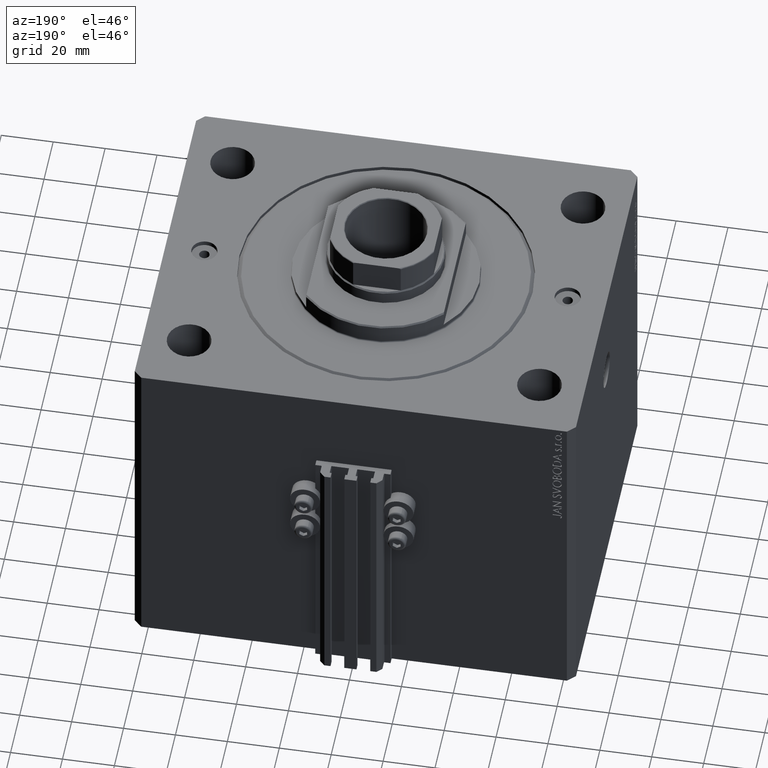
[diagram: clean part render]
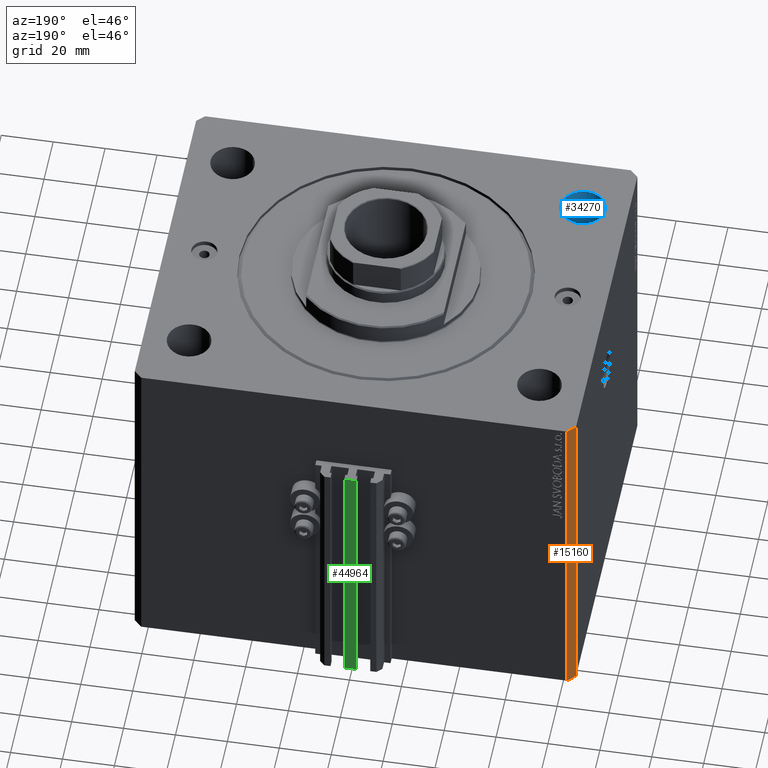
[diagram: same view with three faces highlighted in distinct colors, each labeled with its STEP entity id]
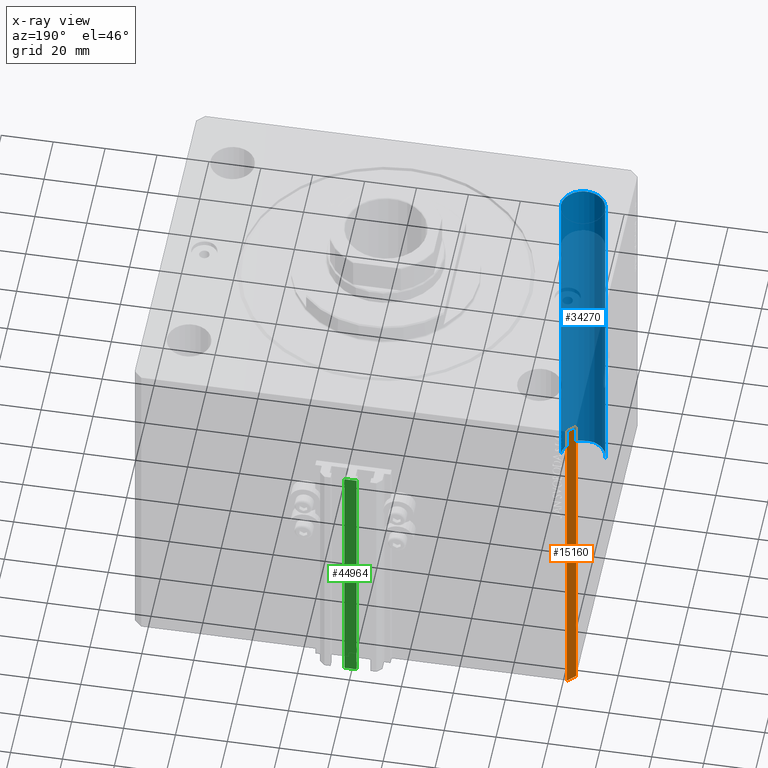
[diagram: x-ray of the same camera — body ghosted, the three highlighted faces saturated]
A machine part, auxiliary view with three faces highlighted in distinct colors.
The next image is the same camera in x-ray (body ghosted, the three faces saturated) — at least one of them is partly hidden behind the body in this view.
Their STEP definitions:

[orange] entity #15160 — the highlighted planar face has unit normal (-0.7071, 0.7071, 0).
#2604 = CARTESIAN_POINT ( 'NONE',  ( -85.00000000000001421, 67.00000000000001421, 0.000000000000000000 ) ) ;
#3656 = DIRECTION ( 'NONE',  ( -0.7071067811865507924, -0.7071067811865441310, 0.000000000000000000 ) ) ;
#5046 = VECTOR ( 'NONE', #25585, 1000.000000000000000 ) ;
#5384 = DIRECTION ( 'NONE',  ( 0.000000000000000000, 0.000000000000000000, 1.000000000000000000 ) ) ;
#5791 = CARTESIAN_POINT ( 'NONE',  ( -85.00000000000001421, 67.00000000000001421, -136.0000000000000000 ) ) ;
#6207 = CARTESIAN_POINT ( 'NONE',  ( -82.00000000000000000, 70.00000000000000000, 0.000000000000000000 ) ) ;
#6242 = EDGE_CURVE ( 'NONE', #8188, #43118, #23521, .T. ) ;
#6811 = CARTESIAN_POINT ( 'NONE',  ( -82.00000000000000000, 70.00000000000000000, -136.0000000000000000 ) ) ;
#7006 = VECTOR ( 'NONE', #3656, 1000.000000000000114 ) ;
#8153 = EDGE_LOOP ( 'NONE', ( #38762, #23579, #36727, #9077 ) ) ;
#8188 = VERTEX_POINT ( 'NONE', #6811 ) ;
#8278 = LINE ( 'NONE', #11632, #24062 ) ;
#8865 = CARTESIAN_POINT ( 'NONE',  ( -82.00000000000000000, 70.00000000000000000, -136.0000000000000000 ) ) ;
#9077 = ORIENTED_EDGE ( 'NONE', *, *, #25217, .T. ) ;
#11632 = CARTESIAN_POINT ( 'NONE',  ( -82.00000000000000000, 70.00000000000000000, 0.000000000000000000 ) ) ;
#14408 = LINE ( 'NONE', #43541, #7006 ) ;
#15160 = ADVANCED_FACE ( 'NONE', ( #27010 ), #41577, .T. ) ;
#16836 = CARTESIAN_POINT ( 'NONE',  ( -82.00000000000000000, 70.00000000000000000, -136.0000000000000000 ) ) ;
#20480 = VECTOR ( 'NONE', #5384, 1000.000000000000000 ) ;
#23421 = DIRECTION ( 'NONE',  ( -0.7071067811865442421, 0.7071067811865509034, 0.000000000000000000 ) ) ;
#23521 = LINE ( 'NONE', #16836, #20480 ) ;
#23579 = ORIENTED_EDGE ( 'NONE', *, *, #6242, .F. ) ;
#24062 = VECTOR ( 'NONE', #37647, 1000.000000000000114 ) ;
#24632 = CARTESIAN_POINT ( 'NONE',  ( -85.00000000000001421, 67.00000000000001421, -136.0000000000000000 ) ) ;
#24692 = EDGE_CURVE ( 'NONE', #43118, #40585, #8278, .T. ) ;
#25217 = EDGE_CURVE ( 'NONE', #29112, #40585, #43015, .T. ) ;
#25585 = DIRECTION ( 'NONE',  ( 0.000000000000000000, 0.000000000000000000, 1.000000000000000000 ) ) ;
#27010 = FACE_OUTER_BOUND ( 'NONE', #8153, .T. ) ;
#29112 = VERTEX_POINT ( 'NONE', #5791 ) ;
#30652 = AXIS2_PLACEMENT_3D ( 'NONE', #8865, #23421, #37995 ) ;
#36727 = ORIENTED_EDGE ( 'NONE', *, *, #43952, .T. ) ;
#37647 = DIRECTION ( 'NONE',  ( -0.7071067811865507924, -0.7071067811865441310, 0.000000000000000000 ) ) ;
#37995 = DIRECTION ( 'NONE',  ( -0.7071067811865507924, -0.7071067811865441310, 0.000000000000000000 ) ) ;
#38762 = ORIENTED_EDGE ( 'NONE', *, *, #24692, .F. ) ;
#40585 = VERTEX_POINT ( 'NONE', #2604 ) ;
#41577 = PLANE ( 'NONE',  #30652 ) ;
#43015 = LINE ( 'NONE', #24632, #5046 ) ;
#43118 = VERTEX_POINT ( 'NONE', #6207 ) ;
#43541 = CARTESIAN_POINT ( 'NONE',  ( -82.00000000000000000, 70.00000000000000000, -136.0000000000000000 ) ) ;
#43952 = EDGE_CURVE ( 'NONE', #8188, #29112, #14408, .T. ) ;

[blue] entity #34270 — the highlighted cylindrical surface (edge-blend (fillet) strip) has radius 8.5 mm, axis along (0, 0, 1).
#2818 = DIRECTION ( 'NONE',  ( 1.000000000000000000, 0.000000000000000000, 0.000000000000000000 ) ) ;
#5285 = AXIS2_PLACEMENT_3D ( 'NONE', #35538, #28130, #2818 ) ;
#8437 = CARTESIAN_POINT ( 'NONE',  ( -75.99999999999998579, -47.50000000000001421, 0.000000000000000000 ) ) ;
#9870 = DIRECTION ( 'NONE',  ( 0.000000000000000000, 0.000000000000000000, 1.000000000000000000 ) ) ;
#10208 = ORIENTED_EDGE ( 'NONE', *, *, #15706, .T. ) ;
#10910 = DIRECTION ( 'NONE',  ( -0.000000000000000000, -0.000000000000000000, -1.000000000000000000 ) ) ;
#13038 = VERTEX_POINT ( 'NONE', #38020 ) ;
#13801 = VERTEX_POINT ( 'NONE', #19699 ) ;
#14755 = LINE ( 'NONE', #23082, #26084 ) ;
#14969 = AXIS2_PLACEMENT_3D ( 'NONE', #44545, #10910, #25471 ) ;
#15706 = EDGE_CURVE ( 'NONE', #24413, #46067, #14755, .T. ) ;
#18412 = EDGE_LOOP ( 'NONE', ( #23824, #10208, #30981, #46211 ) ) ;
#19699 = CARTESIAN_POINT ( 'NONE',  ( -59.00000000000000000, -47.50000000000001421, -136.0000000000000000 ) ) ;
#21458 = FACE_OUTER_BOUND ( 'NONE', #18412, .T. ) ;
#23082 = CARTESIAN_POINT ( 'NONE',  ( -75.99999999999998579, -47.50000000000001421, -160.0416305603426395 ) ) ;
#23824 = ORIENTED_EDGE ( 'NONE', *, *, #25784, .T. ) ;
#24413 = VERTEX_POINT ( 'NONE', #36541 ) ;
#25471 = DIRECTION ( 'NONE',  ( 1.000000000000000000, 0.000000000000000000, 0.000000000000000000 ) ) ;
#25784 = EDGE_CURVE ( 'NONE', #13801, #24413, #42391, .T. ) ;
#26084 = VECTOR ( 'NONE', #30479, 1000.000000000000000 ) ;
#26718 = VECTOR ( 'NONE', #46745, 1000.000000000000000 ) ;
#27673 = CIRCLE ( 'NONE', #35275, 8.499999999999992895 ) ;
#28130 = DIRECTION ( 'NONE',  ( -0.000000000000000000, -0.000000000000000000, 1.000000000000000000 ) ) ;
#30479 = DIRECTION ( 'NONE',  ( -0.000000000000000000, -0.000000000000000000, 1.000000000000000000 ) ) ;
#30981 = ORIENTED_EDGE ( 'NONE', *, *, #46520, .T. ) ;
#34270 = ADVANCED_FACE ( 'NONE', ( #21458 ), #45815, .F. ) ;
#35275 = AXIS2_PLACEMENT_3D ( 'NONE', #39016, #9870, #38534 ) ;
#35538 = CARTESIAN_POINT ( 'NONE',  ( -67.49999999999998579, -47.50000000000001421, -160.0416305603426395 ) ) ;
#36491 = LINE ( 'NONE', #43166, #26718 ) ;
#36541 = CARTESIAN_POINT ( 'NONE',  ( -75.99999999999998579, -47.50000000000001421, -136.0000000000000000 ) ) ;
#38020 = CARTESIAN_POINT ( 'NONE',  ( -59.00000000000000000, -47.50000000000001421, 0.000000000000000000 ) ) ;
#38534 = DIRECTION ( 'NONE',  ( 1.000000000000000000, 0.000000000000000000, 0.000000000000000000 ) ) ;
#39016 = CARTESIAN_POINT ( 'NONE',  ( -67.49999999999998579, -47.50000000000001421, 0.000000000000000000 ) ) ;
#40909 = EDGE_CURVE ( 'NONE', #13801, #13038, #36491, .T. ) ;
#42391 = CIRCLE ( 'NONE', #14969, 8.499999999999992895 ) ;
#43166 = CARTESIAN_POINT ( 'NONE',  ( -59.00000000000000000, -47.50000000000001421, -160.0416305603426395 ) ) ;
#44545 = CARTESIAN_POINT ( 'NONE',  ( -67.49999999999998579, -47.50000000000001421, -136.0000000000000000 ) ) ;
#45815 = CYLINDRICAL_SURFACE ( 'NONE', #5285, 8.499999999999992895 ) ;
#46067 = VERTEX_POINT ( 'NONE', #8437 ) ;
#46211 = ORIENTED_EDGE ( 'NONE', *, *, #40909, .F. ) ;
#46520 = EDGE_CURVE ( 'NONE', #46067, #13038, #27673, .T. ) ;
#46745 = DIRECTION ( 'NONE',  ( -0.000000000000000000, -0.000000000000000000, 1.000000000000000000 ) ) ;

[green] entity #44964 — the highlighted planar face has unit normal (0, -1, 0).
#365 = LINE ( 'NONE', #46928, #44843 ) ;
#3028 = LINE ( 'NONE', #32410, #18210 ) ;
#3044 = ORIENTED_EDGE ( 'NONE', *, *, #31707, .T. ) ;
#4895 = DIRECTION ( 'NONE',  ( 0.000000000000000000, -0.000000000000000000, -1.000000000000000000 ) ) ;
#6531 = VERTEX_POINT ( 'NONE', #19652 ) ;
#7004 = EDGE_CURVE ( 'NONE', #39313, #40744, #3028, .T. ) ;
#7087 = DIRECTION ( 'NONE',  ( 0.000000000000000000, 0.000000000000000000, 1.000000000000000000 ) ) ;
#8722 = FACE_OUTER_BOUND ( 'NONE', #9092, .T. ) ;
#9092 = EDGE_LOOP ( 'NONE', ( #46545, #10554, #19310, #3044 ) ) ;
#9540 = LINE ( 'NONE', #24798, #19844 ) ;
#9749 = CARTESIAN_POINT ( 'NONE',  ( 2.349999999999999645, 78.00000000000001421, -33.00000000000000000 ) ) ;
#10554 = ORIENTED_EDGE ( 'NONE', *, *, #40621, .F. ) ;
#15746 = DIRECTION ( 'NONE',  ( 1.000000000000000000, 0.000000000000000000, 0.000000000000000000 ) ) ;
#16315 = EDGE_CURVE ( 'NONE', #6531, #22840, #37709, .T. ) ;
#18210 = VECTOR ( 'NONE', #35509, 1000.000000000000000 ) ;
#19310 = ORIENTED_EDGE ( 'NONE', *, *, #16315, .F. ) ;
#19652 = CARTESIAN_POINT ( 'NONE',  ( -2.350000000000003642, 78.00000000000001421, -136.0000000000000000 ) ) ;
#19844 = VECTOR ( 'NONE', #31513, 1000.000000000000000 ) ;
#21204 = CARTESIAN_POINT ( 'NONE',  ( -2.350000000000003642, 78.00000000000001421, -33.00000000000000000 ) ) ;
#22840 = VERTEX_POINT ( 'NONE', #33393 ) ;
#24572 = VECTOR ( 'NONE', #15746, 1000.000000000000000 ) ;
#24798 = CARTESIAN_POINT ( 'NONE',  ( 2.349999999999999645, 78.00000000000001421, -136.0000000000000000 ) ) ;
#27091 = DIRECTION ( 'NONE',  ( 0.000000000000000000, -1.000000000000000000, 0.000000000000000000 ) ) ;
#30069 = CARTESIAN_POINT ( 'NONE',  ( -2.350000000000003642, 78.00000000000001421, -136.0000000000000000 ) ) ;
#31397 = AXIS2_PLACEMENT_3D ( 'NONE', #40946, #27091, #4895 ) ;
#31513 = DIRECTION ( 'NONE',  ( 0.000000000000000000, 0.000000000000000000, 1.000000000000000000 ) ) ;
#31707 = EDGE_CURVE ( 'NONE', #6531, #39313, #365, .T. ) ;
#32410 = CARTESIAN_POINT ( 'NONE',  ( -2.350000000000003642, 78.00000000000001421, -33.00000000000000000 ) ) ;
#33393 = CARTESIAN_POINT ( 'NONE',  ( 2.349999999999999645, 78.00000000000001421, -136.0000000000000000 ) ) ;
#35509 = DIRECTION ( 'NONE',  ( 1.000000000000000000, 0.000000000000000000, 0.000000000000000000 ) ) ;
#37709 = LINE ( 'NONE', #30069, #24572 ) ;
#39313 = VERTEX_POINT ( 'NONE', #21204 ) ;
#40621 = EDGE_CURVE ( 'NONE', #22840, #40744, #9540, .T. ) ;
#40744 = VERTEX_POINT ( 'NONE', #9749 ) ;
#40946 = CARTESIAN_POINT ( 'NONE',  ( -2.350000000000003642, 78.00000000000001421, -136.0000000000000000 ) ) ;
#41193 = PLANE ( 'NONE',  #31397 ) ;
#44843 = VECTOR ( 'NONE', #7087, 1000.000000000000000 ) ;
#44964 = ADVANCED_FACE ( 'NONE', ( #8722 ), #41193, .F. ) ;
#46545 = ORIENTED_EDGE ( 'NONE', *, *, #7004, .T. ) ;
#46928 = CARTESIAN_POINT ( 'NONE',  ( -2.350000000000003642, 78.00000000000001421, -136.0000000000000000 ) ) ;